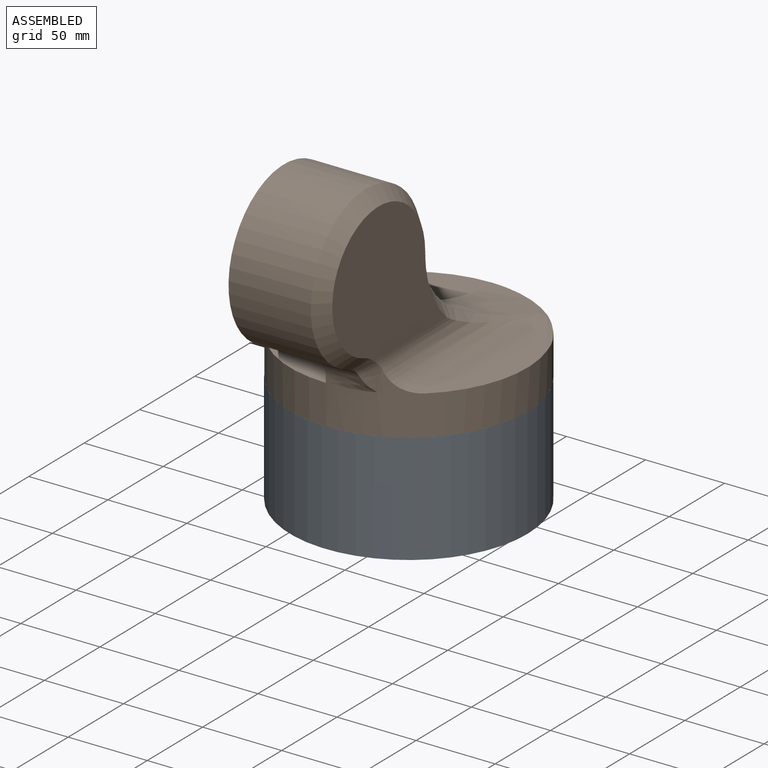
[diagram: assembled view]
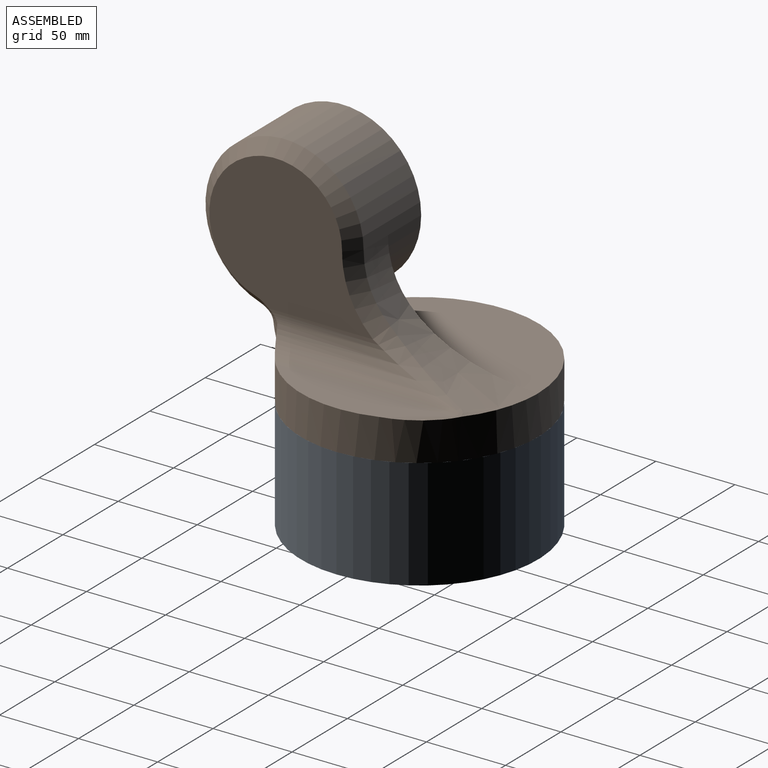
[diagram: assembled view, second angle]
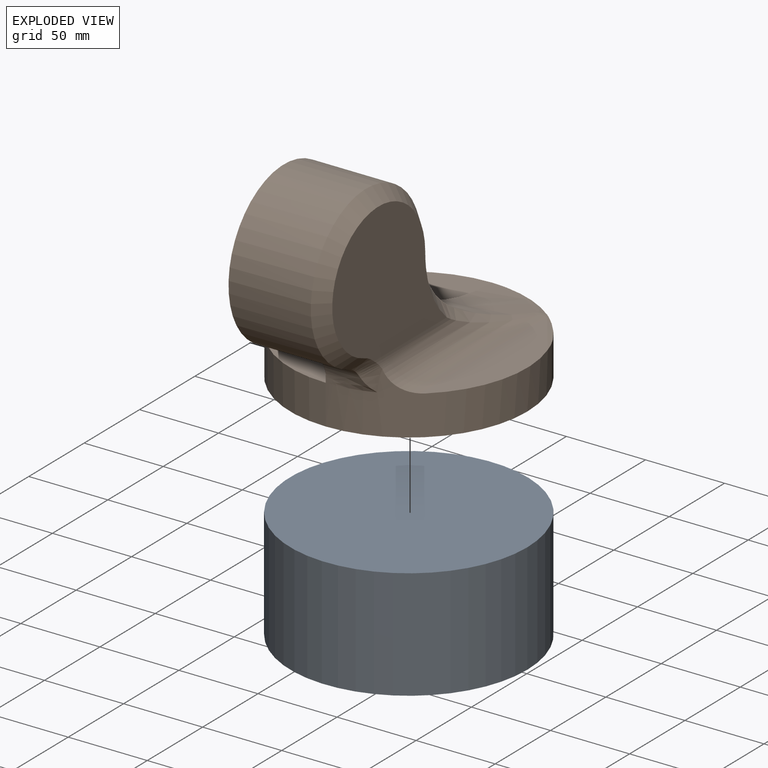
[diagram: exploded view]
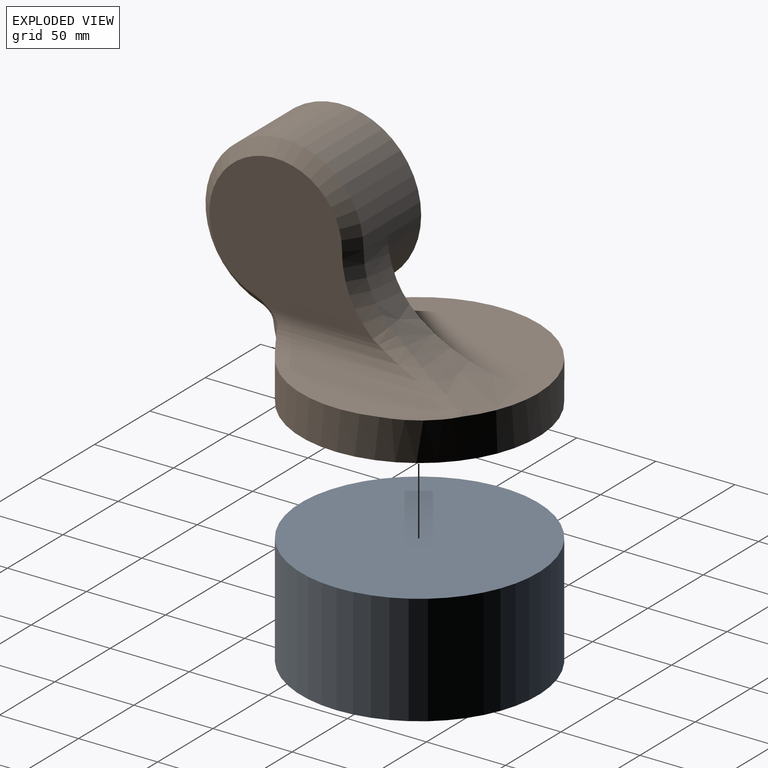
[diagram: exploded view, second angle]
ASSEMBLY  parts=2 mates=2
PART A: 3 faces, bbox 150x150x70 mm
  f0: cylinder r=75mm len=150mm, axis (0,0,-1), area 32986.7mm2, adj f1,f2
  f1: plane 150x150mm, normal (0,0,1), area 17671.5mm2, adj f0
  f2: plane 150x150mm, normal (0,0,-1), area 17671.5mm2, adj f0
PART B: 22 faces, bbox 159.2x195.5x140.5 mm
  f0: plane 150x75mm, normal (0,0,1), area 8835.7mm2, adj f1,f8
  f1: cylinder r=75mm len=150mm, axis (0,0,-1), area 11877.6mm2, adj f0,f2,f3,f10,f11,f12,f13,f14
  f2: plane 109.42x25mm, normal (0,0,1), area 1847.2mm2, adj f1,f13,f20
  f3: plane 150x150mm, normal (0,0,-1), area 17671.5mm2, adj f1
  f4: cylinder r=50mm len=100mm, axis (-1,0,0), area 14264.4mm2, adj f6,f8,f9,f17,f21
  f5: plane 3.87x3.15mm, normal (0,-1,0), area 6.1mm2, adj f8,f9,f10
  f6: extruded ~95x65mm, area 3392.3mm2, adj f4,f8,f12,f18,f19
  f7: plane 103.92x87.46mm, normal (1,0,0), area 6334.3mm2, adj f13,f16,f17,f18
  f8: plane 160.38x65mm, normal (-1,0,0), area 2627.6mm2, adj f0,f4,f5,f6,f9
  f9: cylinder r=15mm len=23.02mm, axis (-1,0,0), area 364.5mm2, adj f4,f5,f8,f11,f15,f16
  f10: bspline ~11.61x5.71mm, area 6.8mm2, adj f1,f5,f11
  f11: bspline ~33.2x10.82mm, area 155mm2, adj f1,f9,f10,f14
  f12: bspline ~50.13x22.94mm, area 86.7mm2, adj f1,f6,f20
  f13: cylinder r=20mm len=131.05mm, axis (0,-1,0), area 2881.4mm2, adj f1,f2,f7,f14,f15,f19,f20
  f14: bspline ~17.42x15.82mm, area 81.1mm2, adj f1,f11,f13,f15
  f15: bspline ~10.8x10.74mm, area 80.3mm2, adj f9,f13,f14,f16
  f16: cone r=15mm half-angle=45deg, axis (1,0,0), area 93.7mm2, adj f7,f9,f15,f17
  f17: cone r=42mm half-angle=45deg, axis (-1,0,0), area 2289.7mm2, adj f4,f7,f16,f18
  f18: bspline ~45x24.95mm, area 534.3mm2, adj f6,f7,f17,f19
  f19: bspline ~63.15x24.71mm, area 471.7mm2, adj f6,f13,f18,f20
  f20: bspline ~42.98x35.01mm, area 111.5mm2, adj f1,f2,f12,f13,f19
  f21: plane 100x100mm, normal (-1,0,0), area 7854mm2, adj f4
PLACE A t=(-21.53,-4.41,25.04)mm fixed
PLACE B t=(-21.53,-4.41,95.04)mm
MATE parallel A.f0 <-> B.f1  axis (0,0,1) through (-21.53,-4.41,95.04)mm
MATE revolute B.f1 <-> A.f0  axis (0,0,-1) through (-21.53,-4.41,95.04)mm
